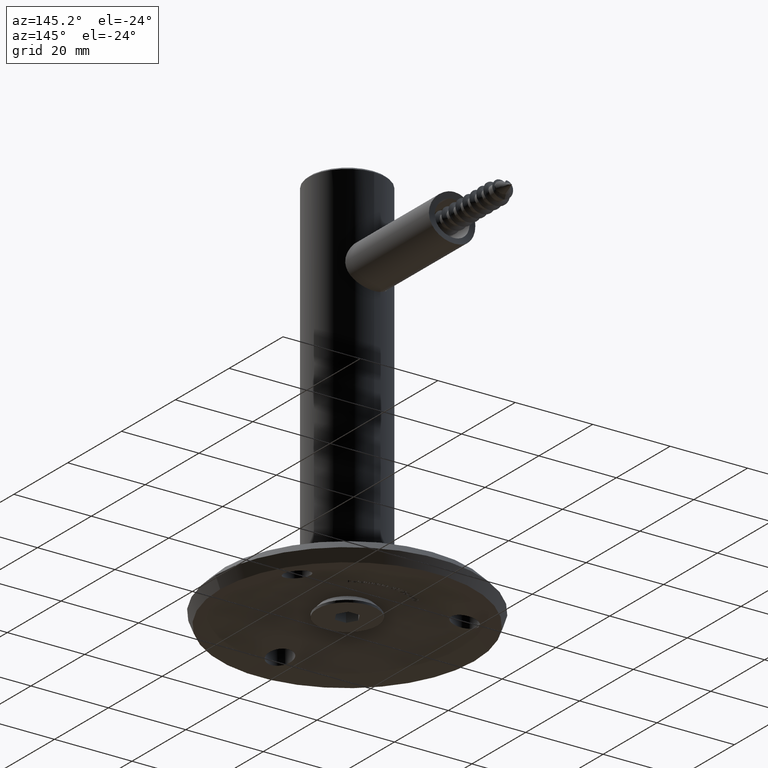
[diagram: clean part render]
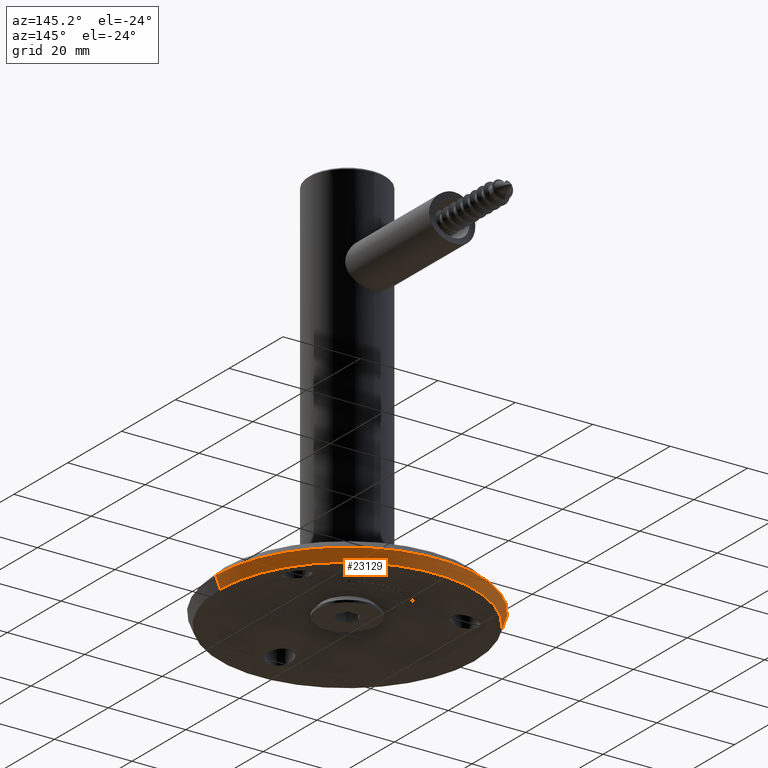
[diagram: same view with one face highlighted and labeled with its STEP entity id]
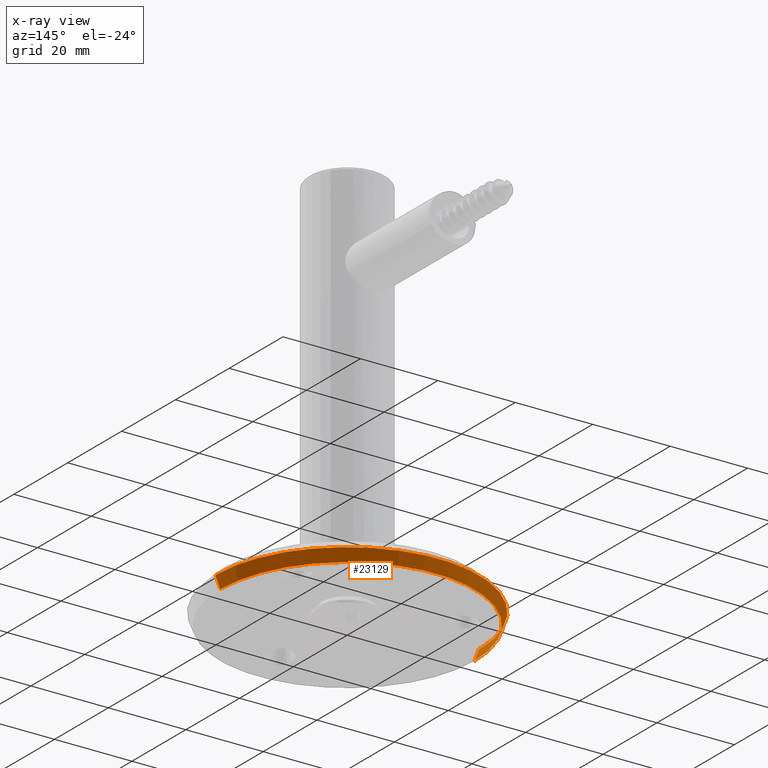
[diagram: x-ray of the same camera — body ghosted, the highlighted face saturated]
A machine part, auxiliary view. The second image highlights one B-rep face of the part: STEP entity #23129.
The next image is the same camera in x-ray: the body ghosted, the highlighted face saturated — about 0% of this face is hidden behind the body in this view.
In plain terms, the highlighted conical surface has half-angle 21.287 deg.
Its self-contained STEP definition (entity closure, byte-faithful):
#182 = EDGE_CURVE ( 'NONE', #7104, #8111, #23853, .T. ) ;
#1403 = AXIS2_PLACEMENT_3D ( 'NONE', #13174, #8677, #6604 ) ;
#1819 = CARTESIAN_POINT ( 'NONE',  ( 7.761254698396231712E-19, -4.142427981893799682, 0.000000000000000000 ) ) ;
#2149 = CARTESIAN_POINT ( 'NONE',  ( 32.83464896222004370, -4.142427981893799682, 4.021084775270973901E-15 ) ) ;
#2370 = VERTEX_POINT ( 'NONE', #25033 ) ;
#2639 = ORIENTED_EDGE ( 'NONE', *, *, #24169, .F. ) ;
#3796 = EDGE_LOOP ( 'NONE', ( #2639, #23377, #27147, #28367 ) ) ;
#3944 = VECTOR ( 'NONE', #4206, 1000.000000000000000 ) ;
#4206 = DIRECTION ( 'NONE',  ( 0.3630377064735174630, 0.9317744489298084298, 4.445929652025895394E-17 ) ) ;
#4603 = DIRECTION ( 'NONE',  ( -0.3630377064735174630, 0.9317744489298084298, 0.000000000000000000 ) ) ;
#4934 = CARTESIAN_POINT ( 'NONE',  ( 32.83464896222006502, -4.142427981893796129, 0.000000000000000000 ) ) ;
#5712 = VERTEX_POINT ( 'NONE', #6509 ) ;
#6509 = CARTESIAN_POINT ( 'NONE',  ( 34.00000000000002842, -1.151432000829118785, 4.163799117101004504E-15 ) ) ;
#6604 = DIRECTION ( 'NONE',  ( -1.000000000000000000, 0.000000000000000000, 0.000000000000000000 ) ) ;
#6729 = CIRCLE ( 'NONE', #1403, 34.00000000000002842 ) ;
#7071 = VECTOR ( 'NONE', #4603, 1000.000000000000000 ) ;
#7104 = VERTEX_POINT ( 'NONE', #4934 ) ;
#8111 = VERTEX_POINT ( 'NONE', #21485 ) ;
#8677 = DIRECTION ( 'NONE',  ( -1.873600393855974325E-19, 1.000000000000000000, -0.000000000000000000 ) ) ;
#9449 = AXIS2_PLACEMENT_3D ( 'NONE', #16287, #20475, #24986 ) ;
#10657 = FACE_OUTER_BOUND ( 'NONE', #3796, .T. ) ;
#10863 = DIRECTION ( 'NONE',  ( -1.000000000000000000, 0.000000000000000000, 0.000000000000000000 ) ) ;
#11336 = LINE ( 'NONE', #2149, #3944 ) ;
#11383 = CARTESIAN_POINT ( 'NONE',  ( -32.83464896222004370, -4.142427981893799682, 0.000000000000000000 ) ) ;
#12059 = CONICAL_SURFACE ( 'NONE', #28248, 32.83464896222004370, 0.3715259619799057278 ) ;
#12925 = DIRECTION ( 'NONE',  ( -1.873600393855974325E-19, 1.000000000000000000, -0.000000000000000000 ) ) ;
#13174 = CARTESIAN_POINT ( 'NONE',  ( 2.157323450251809556E-19, -1.151432000829118785, 0.000000000000000000 ) ) ;
#16122 = EDGE_CURVE ( 'NONE', #8111, #2370, #22521, .T. ) ;
#16287 = CARTESIAN_POINT ( 'NONE',  ( 7.761254698396231712E-19, -4.142427981893799682, 0.000000000000000000 ) ) ;
#20475 = DIRECTION ( 'NONE',  ( -1.873600393855974325E-19, 1.000000000000000000, -0.000000000000000000 ) ) ;
#21485 = CARTESIAN_POINT ( 'NONE',  ( -32.83464896222003659, -4.142427981893796129, -4.021084775270976268E-15 ) ) ;
#22521 = LINE ( 'NONE', #11383, #7071 ) ;
#23129 = ADVANCED_FACE ( 'NONE', ( #10657 ), #12059, .T. ) ;
#23377 = ORIENTED_EDGE ( 'NONE', *, *, #182, .T. ) ;
#23853 = CIRCLE ( 'NONE', #9449, 32.83464896222004370 ) ;
#24169 = EDGE_CURVE ( 'NONE', #7104, #5712, #11336, .T. ) ;
#24986 = DIRECTION ( 'NONE',  ( -1.000000000000000000, 0.000000000000000000, 0.000000000000000000 ) ) ;
#25033 = CARTESIAN_POINT ( 'NONE',  ( -34.00000000000002842, -1.151432000829118785, 0.000000000000000000 ) ) ;
#26958 = EDGE_CURVE ( 'NONE', #5712, #2370, #6729, .T. ) ;
#27147 = ORIENTED_EDGE ( 'NONE', *, *, #16122, .T. ) ;
#28248 = AXIS2_PLACEMENT_3D ( 'NONE', #1819, #12925, #10863 ) ;
#28367 = ORIENTED_EDGE ( 'NONE', *, *, #26958, .F. ) ;